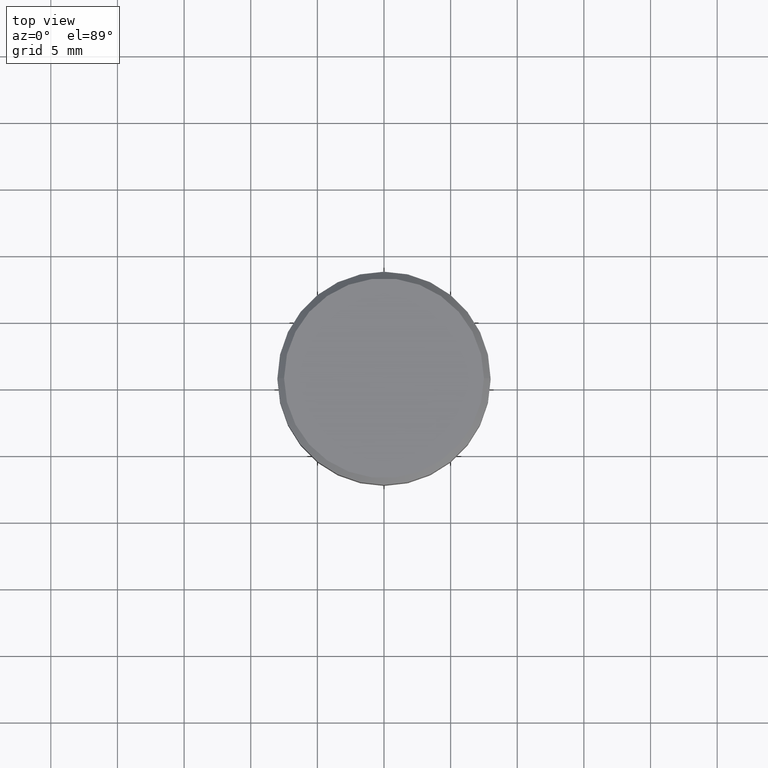
[diagram: clean part render]
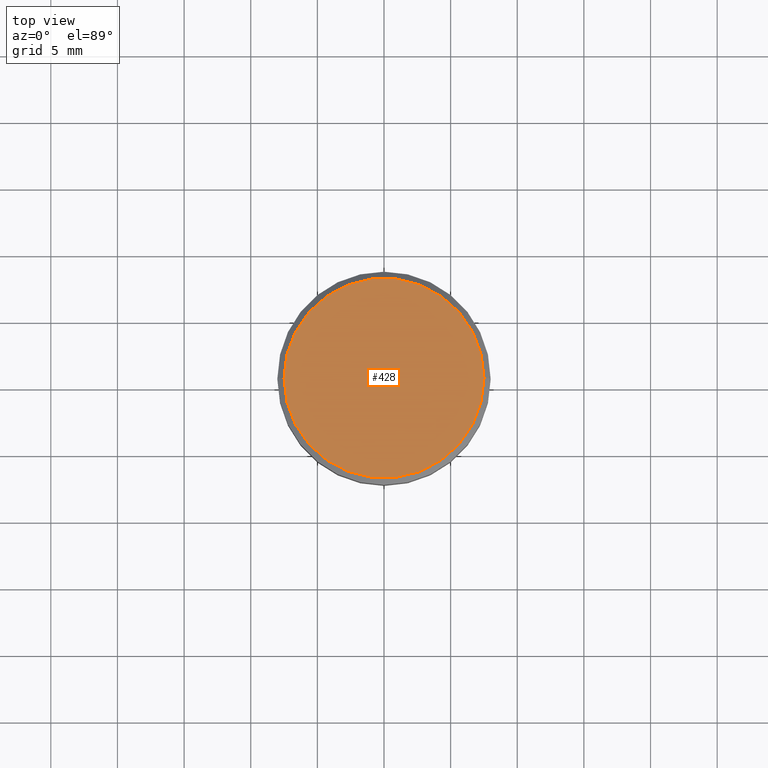
[diagram: same view with one face highlighted and labeled with its STEP entity id]
A machine part, top view. The second image highlights one B-rep face of the part: STEP entity #428.
In plain terms, the highlighted planar face has unit normal (0, -0, 1).
Its self-contained STEP definition (entity closure, byte-faithful):
#12 = AXIS2_PLACEMENT_3D ( 'NONE', #489, #63, #444 ) ;
#63 = DIRECTION ( 'NONE',  ( 0.000000000000000000, -0.000000000000000000, 1.000000000000000000 ) ) ;
#76 = AXIS2_PLACEMENT_3D ( 'NONE', #550, #502, #217 ) ;
#118 = DIRECTION ( 'NONE',  ( -0.000000000000000000, -0.000000000000000000, 1.000000000000000000 ) ) ;
#142 = CARTESIAN_POINT ( 'NONE',  ( 7.500000000000003553, 9.491012693391989759E-16, 0.000000000000000000 ) ) ;
#217 = DIRECTION ( 'NONE',  ( 1.000000000000000000, 0.000000000000000000, 0.000000000000000000 ) ) ;
#218 = EDGE_CURVE ( 'NONE', #253, #330, #333, .T. ) ;
#219 = CARTESIAN_POINT ( 'NONE',  ( -7.500000000000003553, 0.000000000000000000, 0.000000000000000000 ) ) ;
#228 = EDGE_LOOP ( 'NONE', ( #573, #541 ) ) ;
#233 = CIRCLE ( 'NONE', #76, 7.500000000000003553 ) ;
#240 = FACE_OUTER_BOUND ( 'NONE', #228, .T. ) ;
#253 = VERTEX_POINT ( 'NONE', #219 ) ;
#280 = DIRECTION ( 'NONE',  ( 1.000000000000000000, 0.000000000000000000, 0.000000000000000000 ) ) ;
#282 = AXIS2_PLACEMENT_3D ( 'NONE', #516, #118, #280 ) ;
#330 = VERTEX_POINT ( 'NONE', #142 ) ;
#333 = CIRCLE ( 'NONE', #282, 7.500000000000003553 ) ;
#428 = ADVANCED_FACE ( 'NONE', ( #240 ), #533, .T. ) ;
#444 = DIRECTION ( 'NONE',  ( 1.000000000000000000, 0.000000000000000000, 0.000000000000000000 ) ) ;
#475 = EDGE_CURVE ( 'NONE', #330, #253, #233, .T. ) ;
#489 = CARTESIAN_POINT ( 'NONE',  ( 0.000000000000000000, 0.000000000000000000, 0.000000000000000000 ) ) ;
#502 = DIRECTION ( 'NONE',  ( -0.000000000000000000, -0.000000000000000000, 1.000000000000000000 ) ) ;
#516 = CARTESIAN_POINT ( 'NONE',  ( 0.000000000000000000, 0.000000000000000000, 0.000000000000000000 ) ) ;
#533 = PLANE ( 'NONE',  #12 ) ;
#541 = ORIENTED_EDGE ( 'NONE', *, *, #475, .T. ) ;
#550 = CARTESIAN_POINT ( 'NONE',  ( 0.000000000000000000, 0.000000000000000000, 0.000000000000000000 ) ) ;
#573 = ORIENTED_EDGE ( 'NONE', *, *, #218, .T. ) ;